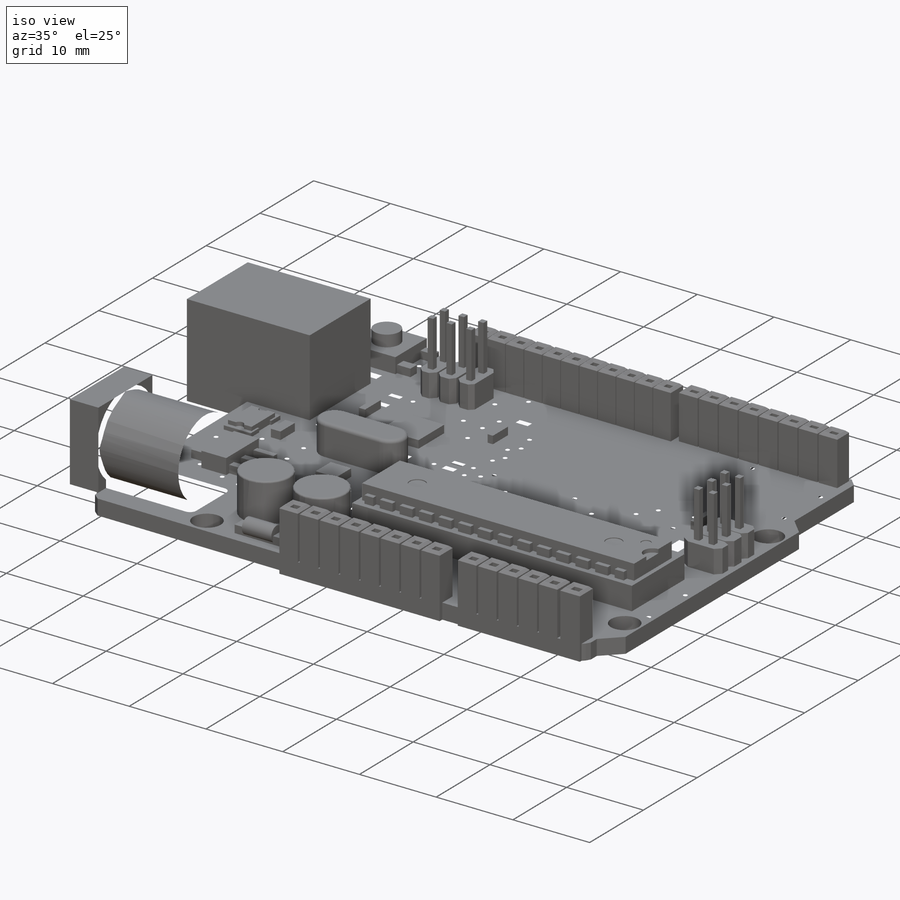
[diagram: iso view]
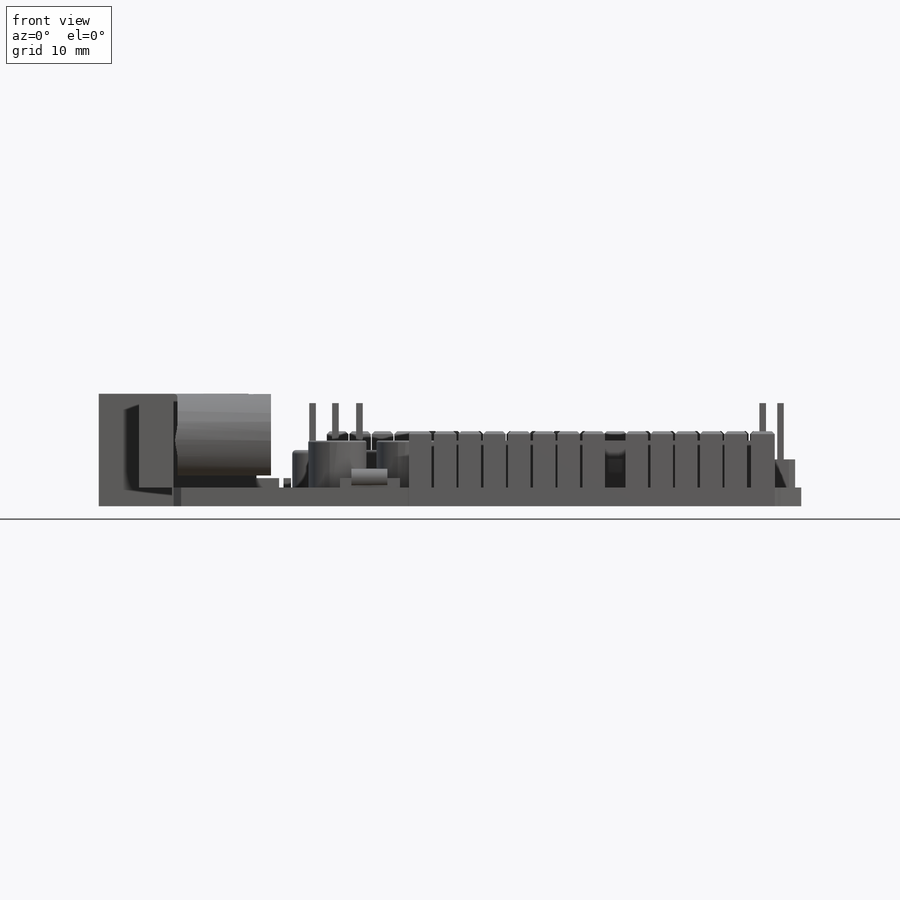
[diagram: front view]
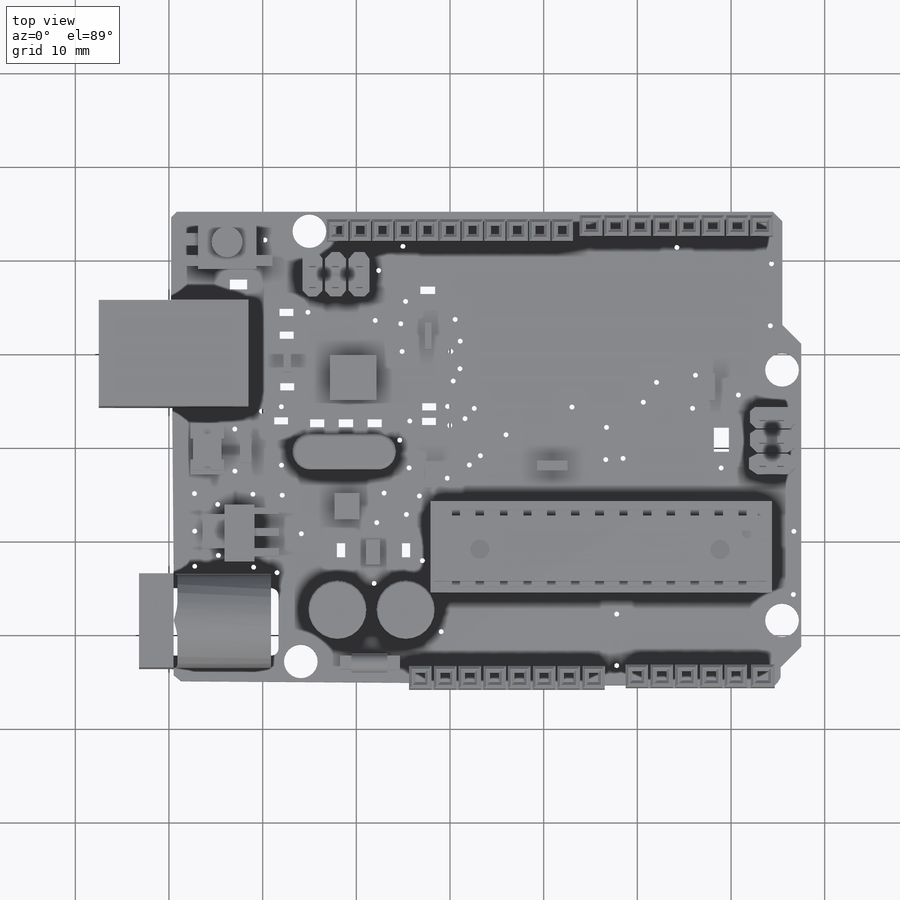
[diagram: top view]
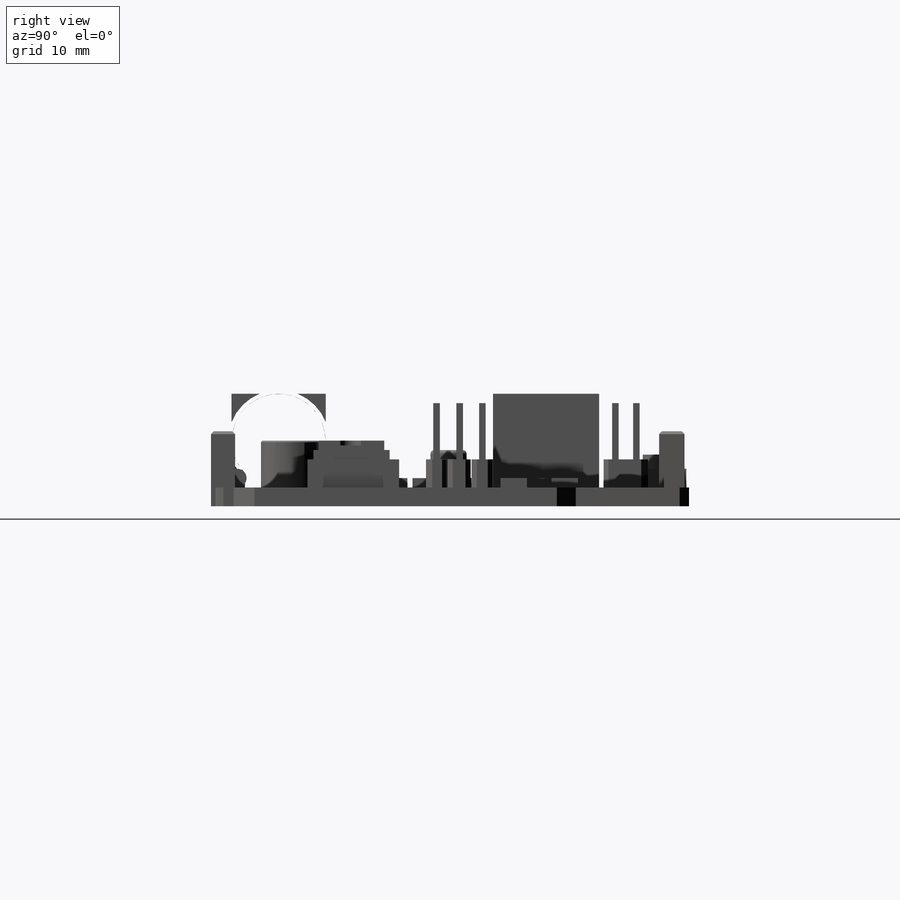
[diagram: right view]
SOLIDWORKS PART (.sldprt)
format: sldprt  version: not decoded by parser v0  size: 3,698,688 bytes
history: native  units: mm
features: sketch x47, extrude x32, cut_extrude x15, fillet x5, plane x3, chamfer x2, material x1 (+9 scaffold rows collapsed)
feature tree (114):
  scaffold x9  (default folders/planes/origin — collapsed)
  material  "Material <sin especificar>"
  plane  "Alzado"
  plane  "Planta"
  plane  "Vista lateral"
  sketch  "Croquis1"  dims[D1=75.0mm D2=52.0mm]
  extrude  "Saliente-Extruir1"  Depth=2mm
  sketch  "Croquis2"  dims[D1=~58.99587mm D2=~10.379264mm D3=~21.711243mm]
  extrude  "Saliente-Extruir2"  Depth=10mm
  sketch  "Croquis3"  dims[D1=8.7mm D2=~13.630616mm D3=~5.769992mm D4=~10.540734mm]
  extrude  "Saliente-Extruir3"  Depth=1mm
  sketch  "Croquis4"  dims[c1.D1=~21.734133mm c1.D2=~22.277491mm c1.D3=~22.37936mm c1.D4=~23.258077mm c1.D5=~23.383501mm c1.D6=~23.903304mm c1.D7=~24.124642mm c1.D8=~24.73916mm c1.D9=~24.864737mm c1.D10=~25.731786mm c1.D11=~25.869173mm c1.D12=~26.405075mm c1.D13=~26.678727mm c1.D14=~27.295044mm c1.D15=~28.354845mm c1.D16=~28.887996mm c2.D3=~21.734133mm c2.D4=~22.37936mm c2.D6=~23.258077mm c2.D7=~24.124642mm c2.D8=~24.73916mm c2.D9=~24.864737mm c2.D10=~25.731786mm c2.D12=~26.405075mm c2.D13=~26.678727mm c2.D14=42.1035mm c2.D17=~42.612762mm c2.D18=~42.748727mm c2.D19=~46.117813mm c2.D20=~46.307249mm c2.D21=~46.824747mm c2.D22=46.8429mm c3.D14=42.1035mm c3.D17=~46.117813mm]
  extrude  "Saliente-Extruir4"  Depth=3mm
  sketch  "Croquis5"  dims[c1.D1=0.7mm c1.D2=0.7mm c1.D3=0.7mm c1.D4=0.7mm c1.D5=0.7mm c1.D6=0.7mm c2.D1=~0.737714mm c2.D2=~0.743299mm c2.D3=~1.087714mm c2.D4=~1.093299mm c2.D5=~1.437714mm c2.D6=~1.443299mm c2.D7=~3.181557mm c2.D8=~3.187142mm c2.D9=~3.531557mm c2.D10=~3.537142mm c2.D11=~3.881557mm c2.D12=~3.887142mm c2.D13=~5.744841mm c2.D14=~5.750425mm c2.D15=~6.094841mm c2.D16=~6.100425mm c2.D17=~6.444841mm c2.D18=~6.450425mm c3.D1=~0.737714mm c3.D2=~0.743299mm c3.D3=~1.087714mm c3.D4=~3.181557mm c3.D5=~5.744841mm]
  extrude  "Saliente-Extruir5"  Depth=6mm
  sketch  "Croquis6"  dims[D1=~35.86907mm D2=~71.306269mm D3=~11.682083mm D4=~18.68623mm]
  extrude  "Saliente-Extruir6"  Depth=5mm
  sketch  "Croquis7"  dims[D1=~35.405133mm D2=~71.855242mm D3=~10.013755mm D4=~19.799622mm D5=0.0mm]
  extrude  "Saliente-Extruir7"  Depth=3mm
  sketch  "Croquis8"
  extrude  "Saliente-Extruir8"  Depth=1mm
  sketch  "Croquis9"
  cut_extrude  "Cortar-Extruir1"  Depth=0.5mm
  sketch  "Croquis10"  dims[D1=~1.20089mm D2=~2.031806mm D3=~2.044604mm D4=~4.987559mm D5=~30.620107mm D6=~1.860718mm D7=~3.616571mm D8=~3.644747mm]
  cut_extrude  "Cortar-Extruir2"  Depth=0.1mm
  sketch  "Croquis11"  dims[D1=~58.174942mm D2=~64.405226mm D3=~1.075412mm D4=~6.935862mm]
  extrude  "Saliente-Extruir9"  Depth=2mm
  sketch  "Croquis12"  dims[D1=3.3mm D2=~3.106747mm D3=~2.864393mm]
  extrude  "Saliente-Extruir10"  Depth=1.5mm
  sketch  "Croquis13"  dims[D1=~53.285406mm D2=~63.022035mm D3=~25.096984mm D4=~26.293665mm D5=~27.299964mm D6=~28.605434mm D7=~29.44855mm D8=~30.400455mm]
  extrude  "Saliente-Extruir11"  Depth=1mm
  sketch  "Croquis14"  dims[D1=~58.359395mm D2=~61.599415mm D3=~32.076395mm D4=~38.160433mm]
  extrude  "Saliente-Extruir12"  Depth=2mm
  sketch  "Croquis15"  dims[D1=~52.594963mm D2=60.7677mm D3=~0.704722mm D4=~1.378131mm D5=~2.877996mm D6=~3.704453mm D7=~5.020661mm D8=~5.877728mm]
  extrude  "Saliente-Extruir13"  Depth=1mm
  sketch  "Croquis16"  dims[D1=~44.037556mm D2=~46.70548mm D3=~0.870546mm D4=~1.920893mm]
  extrude  "Saliente-Extruir14"  Depth=1mm
  sketch  "Croquis18"  dims[D1=~9.238037mm D2=~9.917005mm D3=~39.368771mm D4=~39.499424mm D5=~40.18137mm D6=~44.971396mm D7=~46.453576mm D8=~54.47412mm D9=~55.271366mm D10=~58.685913mm D11=~59.937997mm D12=~12.647272mm D13=~14.926953mm D14=~15.456438mm D15=~17.867445mm D16=~18.063902mm D17=~20.909098mm D18=~24.918985mm D19=~27.433106mm D20=~27.591972mm D21=~30.294372mm D22=~35.827166mm D23=~38.465447mm]
  extrude  "Saliente-Extruir15"  Depth=1mm
  sketch  "Croquis19"  dims[c1.D1=~2.021437mm c1.D2=~3.023658mm c1.D3=~66.657937mm c1.D4=~67.262304mm c1.D5=~0.789911mm c1.D6=~1.394278mm c1.D7=~1.792132mm c1.D8=~12.871323mm c1.D9=~14.892759mm c2.D5=~0.789911mm c2.D6=~1.394278mm c2.D7=~12.871323mm]
  cut_extrude  "Cortar-Extruir3"  Depth=11mm
  sketch  "Croquis20"  dims[D1=~42.002999mm D2=~66.194776mm D3=~66.997935mm D4=~67.153239mm D5=~70.701851mm D6=~0.946135mm D7=~1.10457mm D8=~1.763081mm D9=~2.384337mm D10=~12.437784mm]
  cut_extrude  "Cortar-Extruir4"  Depth=11mm
  sketch  "Croquis21"  dims[c1.D1=~2.206347mm c1.D2=~2.510692mm c1.D3=~2.837971mm c1.D4=~18.74628mm c1.D5=~20.986042mm c1.D6=~41.873141mm c1.D7=~46.390043mm c1.D8=~48.59639mm c1.D9=~49.683601mm c1.D10=~50.212192mm c1.D11=~50.279452mm c1.D12=~50.53947mm c1.D13=~50.838592mm c1.D14=~51.015923mm c2.D7=~46.390043mm c2.D8=~48.59639mm c2.D9=~49.683601mm c2.D10=~50.212192mm c2.D12=~50.838592mm]
  cut_extrude  "Cortar-Extruir5"  Depth=11mm
  sketch  "Croquis22"  dims[D1=6.2mm D2=~42.246963mm D3=~49.532207mm D4=~42.577017mm]
  extrude  "Saliente-Extruir16"  Depth=5mm
  fillet  "Redondeo1"  Radius=0.2mm
  sketch  "Croquis23"  dims[c1.D1=~0.66426mm c1.D2=~1.213655mm c1.D3=~1.328187mm c1.D4=~1.482788mm c1.D5=~4.705212mm c1.D6=~4.72745mm c1.D7=~4.838643mm c1.D8=~4.99625mm c1.D9=~5.463597mm c1.D10=~5.504546mm c1.D11=~5.605871mm c1.D12=~20.931471mm c1.D13=~21.352098mm c1.D14=~21.480865mm c1.D15=~22.577491mm c1.D16=~22.65305mm c1.D17=~23.202445mm c1.D18=~23.309086mm c1.D19=~23.753856mm c1.D20=~23.858481mm c1.D21=~24.997961mm c1.D22=~25.210089mm c1.D23=~25.775057mm c1.D24=~25.899872mm c1.D25=~25.910991mm c1.D26=~26.344642mm c1.D27=~27.41209mm c1.D28=~27.489925mm c1.D29=~28.076017mm c2.D12=~20.931471mm c2.D13=~21.352098mm c2.D14=~22.577491mm c2.D15=~23.309086mm c2.D16=~23.753856mm c2.D17=~24.997961mm c2.D18=~27.41209mm]
  extrude  "Saliente-Extruir17"  Depth=3mm
  sketch  "Croquis24"  dims[c1.D1=0.7mm c1.D2=0.7mm c2.D1=~0.993857mm c2.D2=~1.343857mm c2.D3=~1.693857mm c2.D4=~2.896796mm c2.D5=~3.246796mm c2.D6=~3.596796mm c3.D1=~0.993857mm c3.D2=~1.343857mm c3.D3=~0.803476mm c3.D4=~1.153476mm c3.D6=~1.503476mm c3.D7=~3.389424mm c3.D8=~3.739424mm c3.D9=~4.089424mm c4.D3=~0.803476mm c4.D4=~3.389424mm c4.D6=~1.343857mm c4.D7=~1.693857mm c4.D8=~2.896796mm c4.D9=~3.246796mm c4.D10=~3.596796mm c4.D11=~4.249942mm c5.D6=~1.343857mm c5.D7=~1.693857mm c5.D8=~2.896796mm c5.D9=~1.850347mm c5.D10=~0.922554mm c5.D12=~1.272554mm c5.D13=~1.622554mm c6.D10=~0.922554mm]
  extrude  "Saliente-Extruir18"  Depth=6mm
  sketch  "Croquis25"  dims[D1=~3.703916mm D2=~10.053447mm]
  extrude  "Saliente-Extruir19"  Depth=1mm
  sketch  "Croquis26"  dims[D1=~1.761567mm D2=~0.951905mm]
  extrude  "Saliente-Extruir20"  Depth=0.5mm
  sketch  "Croquis27"
  cut_extrude  "Cortar-Extruir6"  Depth=0.5mm
  sketch  "Croquis28"  dims[D1=3.6mm D2=~12.741454mm D3=~13.657776mm D4=~64.108736mm D5=~0.573129mm D6=15.3824mm D7=~42.121513mm D8=~46.510407mm]
  cut_extrude  "Cortar-Extruir7"  Depth=10.5mm
  sketch  "Croquis29"
  extrude  "Saliente-Extruir21"  Depth=2mm
  sketch  "Croquis30"
  cut_extrude  "Cortar-Extruir9"  Depth=4mm
  sketch  "Croquis32"  dims[D1=~16.940168mm D2=~23.306664mm D3=~45.948292mm D4=~47.36701mm D5=~47.402478mm]
  extrude  "Saliente-Extruir24"  Depth=1mm
  sketch  "Croquis33"  dims[D1=~42.491809mm D2=~45.718253mm D3=~21.197099mm D4=22.2492mm]
  extrude  "Saliente-Extruir25"  Depth=1mm
  sketch  "Croquis34"  dims[c1.D1=~15.511861mm c1.D2=~17.80677mm c1.D3=~0.590377mm c1.D4=~1.704532mm c2.D3=~0.590377mm c2.D4=2.0mm c2.D5=2.0mm c2.D7=11.0]
  extrude  "Saliente-Extruir26"  Depth=6mm
  sketch  "Croquis35"  dims[D1=0.7mm D2=0.7mm D3=0.7mm D4=0.7mm D5=0.7mm D6=0.7mm D7=0.7mm D8=0.7mm D9=0.7mm D10=0.7mm D11=0.7mm D12=0.7mm D13=0.7mm D14=0.7mm D15=0.7mm D16=0.7mm D17=0.7mm D18=0.7mm D19=0.7mm]
  cut_extrude  "Cortar-Extruir10"  Depth=5mm
  chamfer  "Chaflán2"  Distance=0.3mm Angle=45deg
  sketch  "Croquis37"  dims[D1=2.4mm D2=2.4mm D4=2.4mm D5=2.4mm D3=8.0]
  extrude  "Saliente-Extruir27"  Depth=6mm
  sketch  "Croquis38"  dims[D1=0.7mm D2=0.7mm D3=0.7mm D4=0.7mm D5=0.7mm D6=0.7mm D7=0.7mm D8=0.7mm D9=0.7mm D10=0.7mm D11=0.7mm D12=0.7mm D13=0.7mm D14=0.7mm]
  cut_extrude  "Cortar-Extruir11"  Depth=5mm
  chamfer  "Chaflán3"  Distance=0.3mm Angle=45deg
  sketch  "Croquis39"
  extrude  "Saliente-Extruir29"  Depth=4mm
  fillet  "Redondeo2"  Radius=0.4mm
  sketch  "Croquis40"
  extrude  "Saliente-Extruir30"  Depth=10mm
  sketch  "Croquis41"  dims[D1=10.0mm]
  cut_extrude  "Cortar-Extruir12"  Depth=3.5mm
  sketch  "Croquis42"  dims[D1=3.2mm D2=3.2mm]
  extrude  "Saliente-Extruir32"  Depth=14.5mm
  fillet  "Redondeo5"  Radius=0.4mm
  fillet  "Redondeo6"  Radius=0.4mm
  sketch  "Croquis43"  dims[D1=6.5mm D2=~5.026723mm D3=5.0mm]
  cut_extrude  "Cortar-Extruir13"  Depth=12.5mm
  sketch  "Croquis44"  dims[D1=2.0mm]
  extrude  "Saliente-Extruir33"  Depth=10.5mm
  fillet  "Redondeo7"  Radius=0.5mm
  sketch  "Croquis45"  dims[c1.D1=10.0mm c1.D2=5.0mm c1.D3=5.0mm c1.D4=2.5mm c1.D5=5.0mm c1.D6=8.0mm c1.D7=2.5mm c1.D8=5.0mm c1.D9=2.9mm c1.D10=2.5mm c1.D11=2.4mm c1.D12=2.5mm c2.D12=220.0deg]
  cut_extrude  "Cortar-Extruir14"  Depth=10.5mm
  sketch  "Croquis46"  dims[D1=0.0mm]
  cut_extrude  "Cortar-Extruir15"  Depth=1mm
  sketch  "Croquis49"  dims[D1=1.3mm D2=1.0mm D3=2.5mm D4=0.6mm D5=0.6mm]
  extrude  "Saliente-Extruir34"  Depth=8mm
  sketch  "Croquis50"
  cut_extrude  "Cortar-Extruir16"  Depth=10mm
  sketch  "Croquis51"
  extrude  "Saliente-Extruir35"  Depth=0.5mm
  sketch  "Croquis52"
  extrude  "Saliente-Extruir36"  Depth=0.5mm
decode coverage: 91 of 101 modeling features carry decoded parameters
note: ~ marks probable driven/reference dimensions
note: suppression state not decoded; provenance and decode notes live in map.json
